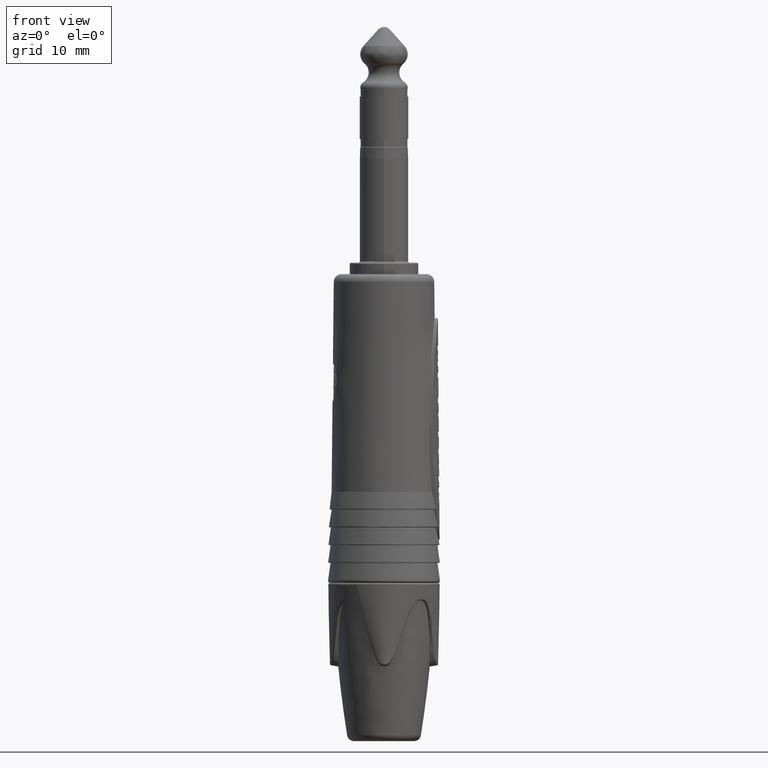
[diagram: clean part render]
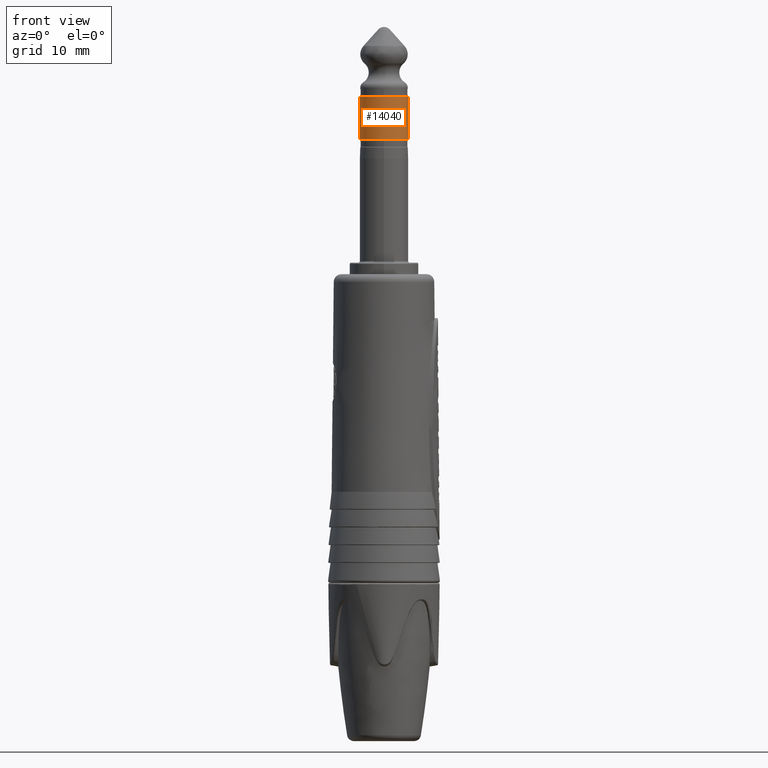
[diagram: same view with one face highlighted and labeled with its STEP entity id]
A machine part, front view. The second image highlights one B-rep face of the part: STEP entity #14040.
In plain terms, the highlighted cylindrical surface (edge-blend (fillet) strip) has radius 3.145 mm, axis along (0, 0, -1).
Its self-contained STEP definition (entity closure, byte-faithful):
#4611=CARTESIAN_POINT('',(0.E0,0.E0,1.6E1));
#4612=DIRECTION('',(0.E0,0.E0,-1.E0));
#4613=DIRECTION('',(1.E0,0.E0,0.E0));
#4614=AXIS2_PLACEMENT_3D('',#4611,#4612,#4613);
#4621=DIRECTION('',(0.E0,0.E0,-1.E0));
#4622=VECTOR('',#4621,5.5E0);
#4623=CARTESIAN_POINT('',(3.145E0,0.E0,2.15E1));
#4624=LINE('',#4623,#4622);
#4625=CARTESIAN_POINT('',(0.E0,0.E0,2.15E1));
#4626=DIRECTION('',(0.E0,0.E0,-1.E0));
#4627=DIRECTION('',(1.E0,0.E0,0.E0));
#4628=AXIS2_PLACEMENT_3D('',#4625,#4626,#4627);
#4645=DIRECTION('',(0.E0,0.E0,-1.E0));
#4646=VECTOR('',#4645,5.5E0);
#4647=CARTESIAN_POINT('',(-3.145E0,0.E0,2.15E1));
#4648=LINE('',#4647,#4646);
#5364=CARTESIAN_POINT('',(3.145E0,0.E0,2.15E1));
#5365=CARTESIAN_POINT('',(-3.145E0,0.E0,2.15E1));
#5366=VERTEX_POINT('',#5364);
#5367=VERTEX_POINT('',#5365);
#5368=CARTESIAN_POINT('',(3.145E0,0.E0,1.6E1));
#5369=CARTESIAN_POINT('',(-3.145E0,0.E0,1.6E1));
#5370=VERTEX_POINT('',#5368);
#5371=VERTEX_POINT('',#5369);
#14026=CARTESIAN_POINT('',(0.E0,0.E0,2.15E1));
#14027=DIRECTION('',(0.E0,0.E0,-1.E0));
#14028=DIRECTION('',(1.E0,0.E0,0.E0));
#14029=AXIS2_PLACEMENT_3D('',#14026,#14027,#14028);
#14030=CYLINDRICAL_SURFACE('',#14029,3.145E0);
#14032=ORIENTED_EDGE('',*,*,#14031,.F.);
#14034=ORIENTED_EDGE('',*,*,#14033,.T.);
#14035=ORIENTED_EDGE('',*,*,#14014,.T.);
#14037=ORIENTED_EDGE('',*,*,#14036,.F.);
#14038=EDGE_LOOP('',(#14032,#14034,#14035,#14037));
#14039=FACE_OUTER_BOUND('',#14038,.F.);
#14040=ADVANCED_FACE('',(#14039),#14030,.T.);
#4615=CIRCLE('',#4614,3.145E0);
#4629=CIRCLE('',#4628,3.145E0);
#14014=EDGE_CURVE('',#5370,#5371,#4615,.T.);
#14031=EDGE_CURVE('',#5366,#5367,#4629,.T.);
#14033=EDGE_CURVE('',#5366,#5370,#4624,.T.);
#14036=EDGE_CURVE('',#5367,#5371,#4648,.T.);